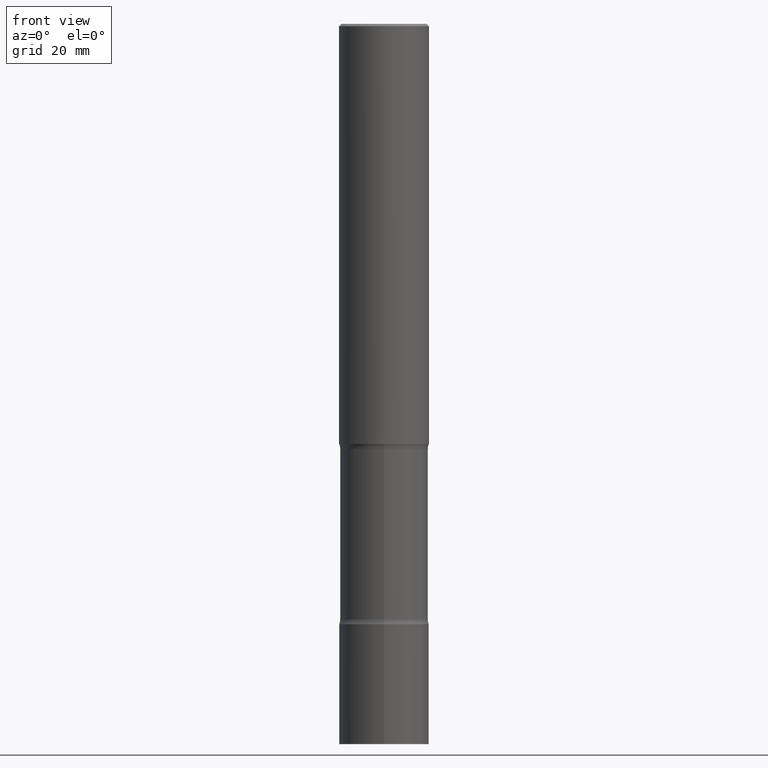
[diagram: clean part render]
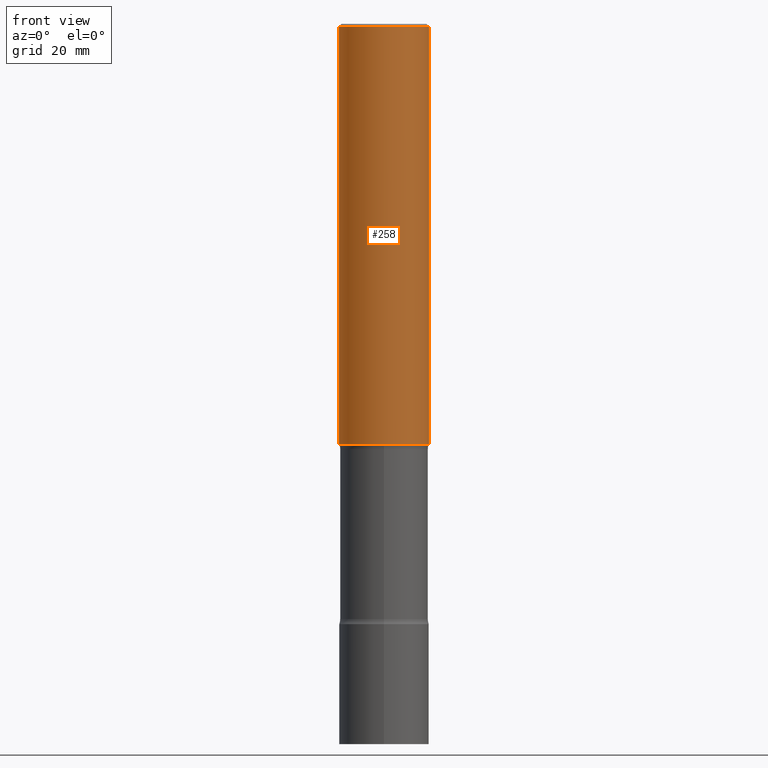
[diagram: same view with one face highlighted and labeled with its STEP entity id]
A machine part, front view. The second image highlights one B-rep face of the part: STEP entity #258.
In plain terms, the highlighted cylindrical surface (partial cylindrical patch) has radius 9.525 mm, axis along (-0, 0, 1).
Its self-contained STEP definition (entity closure, byte-faithful):
#17 = DIRECTION ( 'NONE',  ( -2.445468806185136597E-29, 3.491481338843145583E-15, 1.000000000000000000 ) ) ;
#23 = AXIS2_PLACEMENT_3D ( 'NONE', #44, #90, #124 ) ;
#30 = ORIENTED_EDGE ( 'NONE', *, *, #186, .T. ) ;
#44 = CARTESIAN_POINT ( 'NONE',  ( 4.890937612370289799E-31, -6.982962677686315028E-17, -0.02000000000000006981 ) ) ;
#49 = CARTESIAN_POINT ( 'NONE',  ( 0.000000000000000000, 0.000000000000000000, 0.000000000000000000 ) ) ;
#60 = CARTESIAN_POINT ( 'NONE',  ( 0.3750000000000000555, -1.483879569008336409E-14, -3.500000000000000888 ) ) ;
#79 = ORIENTED_EDGE ( 'NONE', *, *, #111, .F. ) ;
#90 = DIRECTION ( 'NONE',  ( -2.445468806185136597E-29, 3.491481338843145583E-15, 1.000000000000000000 ) ) ;
#94 = LINE ( 'NONE', #400, #354 ) ;
#109 = AXIS2_PLACEMENT_3D ( 'NONE', #299, #17, #379 ) ;
#111 = EDGE_CURVE ( 'NONE', #222, #112, #94, .T. ) ;
#112 = VERTEX_POINT ( 'NONE', #366 ) ;
#124 = DIRECTION ( 'NONE',  ( 1.000000000000000000, -6.982962677686265922E-15, 0.000000000000000000 ) ) ;
#134 = CARTESIAN_POINT ( 'NONE',  ( -0.3750000000000000555, -3.480471897263558651E-15, -3.500000000000000888 ) ) ;
#141 = LINE ( 'NONE', #346, #341 ) ;
#169 = CARTESIAN_POINT ( 'NONE',  ( 0.3749999999999997780, -2.642516375941186056E-15, -0.02000000000000006981 ) ) ;
#186 = EDGE_CURVE ( 'NONE', #222, #462, #223, .T. ) ;
#192 = VERTEX_POINT ( 'NONE', #169 ) ;
#200 = DIRECTION ( 'NONE',  ( -2.445468806185136877E-29, 3.491481338843145188E-15, 1.000000000000000000 ) ) ;
#214 = DIRECTION ( 'NONE',  ( -2.445468806185136877E-29, 3.491481338843145188E-15, 1.000000000000000000 ) ) ;
#222 = VERTEX_POINT ( 'NONE', #134 ) ;
#223 = CIRCLE ( 'NONE', #109, 0.3750000000000000555 ) ;
#233 = CYLINDRICAL_SURFACE ( 'NONE', #386, 0.3749999999999998890 ) ;
#234 = DIRECTION ( 'NONE',  ( -2.445468806185136597E-29, 3.491481338843145583E-15, 1.000000000000000000 ) ) ;
#244 = FACE_OUTER_BOUND ( 'NONE', #265, .T. ) ;
#258 = ADVANCED_FACE ( 'NONE', ( #244 ), #233, .T. ) ;
#265 = EDGE_LOOP ( 'NONE', ( #79, #30, #356, #468 ) ) ;
#299 = CARTESIAN_POINT ( 'NONE',  ( 8.559140821647979210E-29, -1.222018468595101250E-14, -3.500000000000000888 ) ) ;
#341 = VECTOR ( 'NONE', #214, 39.37007874015748143 ) ;
#346 = CARTESIAN_POINT ( 'NONE',  ( 0.3749999999999998890, -2.618611004132349228E-15, 1.828566290923475362E-29 ) ) ;
#347 = EDGE_CURVE ( 'NONE', #112, #192, #450, .T. ) ;
#354 = VECTOR ( 'NONE', #200, 39.37007874015748143 ) ;
#356 = ORIENTED_EDGE ( 'NONE', *, *, #428, .T. ) ;
#362 = DIRECTION ( 'NONE',  ( 1.000000000000000000, -6.982962677686266711E-15, 4.876176775795935793E-29 ) ) ;
#366 = CARTESIAN_POINT ( 'NONE',  ( -0.3749999999999997780, 2.548781377355484746E-15, -0.02000000000000006981 ) ) ;
#379 = DIRECTION ( 'NONE',  ( 1.000000000000000000, -6.982962677686266711E-15, 0.000000000000000000 ) ) ;
#386 = AXIS2_PLACEMENT_3D ( 'NONE', #49, #234, #362 ) ;
#400 = CARTESIAN_POINT ( 'NONE',  ( -0.3749999999999998890, 2.664535259100374908E-15, -1.844600658845589038E-29 ) ) ;
#428 = EDGE_CURVE ( 'NONE', #462, #192, #141, .T. ) ;
#450 = CIRCLE ( 'NONE', #23, 0.3749999999999997780 ) ;
#462 = VERTEX_POINT ( 'NONE', #60 ) ;
#468 = ORIENTED_EDGE ( 'NONE', *, *, #347, .F. ) ;